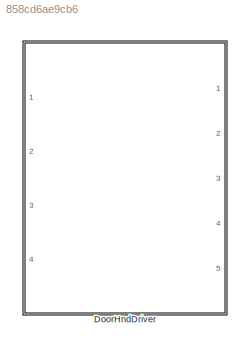
MODEL slx_858cd6ae9cb6
KIND library
CONFIG AbsTol = auto
CONFIG EnableMultiTasking = off
CONFIG FixedStep = auto
CONFIG MaxStep = auto
CONFIG MinStep = auto
CONFIG RelTol = 1e-3
CONFIG SampleTimeConstraint = Unconstrained
CONFIG SolverName = VariableStepAuto
CONFIG StartTime = 0.0
CONFIG StopTime = 10.0
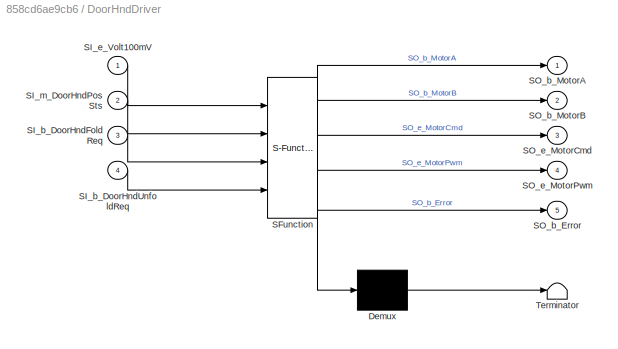
BLOCK [SubSystem] DoorHndDriver
  ErrorFcn = Stateflow.Translate.translate
  PermitHierarchicalResolution = ExplicitOnly
  Ports = [4, 5]
  RequestExecContextInheritance = off
  SFBlockType = Chart
  TreatAsAtomicUnit = on
BLOCK [Demux] DoorHndDriver/ Demux 
  Outputs = 1
  Ports = [1, 1]
BLOCK [S-Function] DoorHndDriver/ SFunction 
  EnableBusSupport = on
  FunctionName = sf_sfun
  PortCounts = [4 6]
  Ports = [4, 6]
  SFcnIsStateOwnerBlock = off
  SFunctionDeploymentMode = off
  Tag = Stateflow S-Function 19
BLOCK [Terminator] DoorHndDriver/ Terminator 
BLOCK [Inport] DoorHndDriver/SI_b_DoorHndFoldReq
  Port = 3
BLOCK [Inport] DoorHndDriver/SI_b_DoorHndUnfoldReq
  Port = 4
BLOCK [Inport] DoorHndDriver/SI_e_Volt100mV
BLOCK [Inport] DoorHndDriver/SI_m_DoorHndPosSts
  Port = 2
BLOCK [Outport] DoorHndDriver/SO_b_Error
  Port = 5
BLOCK [Outport] DoorHndDriver/SO_b_MotorA
BLOCK [Outport] DoorHndDriver/SO_b_MotorB
  Port = 2
BLOCK [Outport] DoorHndDriver/SO_e_MotorCmd
  Port = 3
BLOCK [Outport] DoorHndDriver/SO_e_MotorPwm
  Port = 4
CHART DoorHndDriver states=33 transitions=103
  STATE_LABEL '<!DOCTYPE HTML PUBLIC "-//W3C//DTD HTML 4.0//EN" "http://www.w3.org/TR/REC-html40/strict.dtd">\n<html><head><meta name="qrichtext" content="1" /><style type="text/css">\np, li { white-space: pre-wrap; }\n</style></head><body align="left" style=" font-family:\'Helvetica\'; font-size:12px; font-weight:400; font-style:normal;">\n<p align="left" style=" margin-top:0px; margin-bottom:0px; margin-left:0px; ma...<+869ch>'
  STATE_LABEL 'Drive'
  STATE_LABEL 'Idle\nen:\nSO_e_MotorCmd = 0;\nSO_b_MotorA = 0;\nSO_b_MotorB = 0;\nSO_e_MotorPwm = 0;'
  STATE_LABEL 'Unfold\n\n\n'
  STATE_LABEL 'Timeout'
  STATE_LABEL 'SoftStartStop'
  STATE_LABEL '<!DOCTYPE HTML PUBLIC "-//W3C//DTD HTML 4.0//EN" "http://www.w3.org/TR/REC-html40/strict.dtd">\n<html><head><meta name="qrichtext" content="1" /><style type="text/css">\np, li { white-space: pre-wrap; }\n</style></head><body align="left" style=" font-family:\'Helvetica\'; font-size:12px; font-weight:400; font-style:normal;">\n<p align="left" style=" margin-top:0px; margin-bottom:0px; margin-left:0px; ma...<+869ch>'
  STATE_LABEL 'Step2\nen:\n /* 保持驱动至门把手展开 */\n'
  STATE_LABEL 'Step1\n/* 软启(线性升压) */\nen:\nSL_e_TickCount = 0;\nSO_e_MotorCmd = 1;\nSO_b_MotorA = 1;\nSO_b_MotorB = 0;\nSO_e_MotorPwm = GetPwm(70); /* 初始电压为7V(单位:100mV) */\ndu:\nSL_e_TickCount++;\non every(LinPwmStepTime(30), tick):\nSO_e_MotorPwm = LinPwmUp(SO_e_MotorPwm, GetPwm(120), (30 - SL_e_TickCount));\nex:\nSO_e_MotorPwm = GetPwm(120);\n'
  STATE_LABEL 'y = GetPwm(x)'
  STATE_LABEL '{y =  (x * 100 / SI_e_Volt100mV);}\n/* 扩大100倍，浮点转整型 */'
  STATE_LABEL '[y > 100]\n{y = 100;}'
  STATE_LABEL 'Step3\nen:\n/* 检测到门把手展开后进行过驱 */\n'
  STATE_LABEL 'y = LinPwmStepTime(t)'
  STATE_LABEL '{y =  t  / (GetPwm(120) - GetPwm(70));}\n/* 时间t按PWM区间差值等分(单位:100mV) */'
  STATE_LABEL '[y == 0]\n{y = 1;}'
  STATE_LABEL 'x1 = LinPwmUp(x, y, z)'
  STATE_LABEL '[x < y]'
  STATE_LABEL '[y - x > z]'
  STATE_LABEL '{x1 = x;}'
  STATE_LABEL '{x1 = x + 1;}'
  STATE_LABEL '{x1 = x + 2;}'
  STATE_LABEL 'Step4\n/* 软停(线性降压) */\nen:\nSL_e_TickCount = 0; \nSO_e_MotorPwm = GetPwm(120); /* 初始电压为12V(单位:100mV) */\non every(LinPwmStepTime(35), tick):\ndu:\nSL_e_TickCount++;\nSO_e_MotorPwm = LinPwmDown(SO_e_MotorPwm, GetPwm(70), (35 - SL_e_TickCount));\nex:\nSO_e_MotorPwm = GetPwm(70);\n'
  STATE_LABEL 'x1 = LinPwmDown(x, y, z)'
  STATE_LABEL '[x > y]'
  STATE_LABEL '[x - y > z]'
  STATE_LABEL '{x1 = x;}'
  STATE_LABEL '{x1 = x - 1;}'
  STATE_LABEL '{x1 = x - 2;}'
  STATE_LABEL '[after(250, tick)]\n /* 超时退出 */'
  STATE_LABEL 'after(30, tick)'
  STATE_LABEL '[SI_m_DoorHndPosSts == Hnd_Unfold] /* 检测门把手是否展开 */'
  STATE_LABEL 'after(25, tick)\n/* 过驱时间:250ms */'
  STATE_LABEL 'after(35, tick)\n/* 正常驱动完成 */'
  STATE_LABEL 'Icebreak\nen:\nSL_e_CycleCount = 0;\n'
  STATE_LABEL 'IceBrkWait\n/* 破冰延时 */\nen:\nSO_e_MotorCmd = 0;\nSO_b_MotorA = 0;\nSO_b_MotorB = 0;\nSO_e_MotorPwm = 0;'
  STATE_LABEL 'IceBrk \nen:\nSO_e_MotorCmd = 1;\nSO_b_MotorA = 1;\nSO_b_MotorB = 0;\nSO_e_MotorPwm = 100;'
  STATE_LABEL 'Check\nen:\nSO_e_MotorCmd = 0;\nSO_b_MotorA = 0;\nSO_b_MotorB = 0;\nSO_e_MotorPwm = 0;\nSL_e_CycleCount++;'
  STATE_LABEL 'after(200, tick)'
  STATE_LABEL 'after(100, tick)'
CHART  states=0 transitions=0
